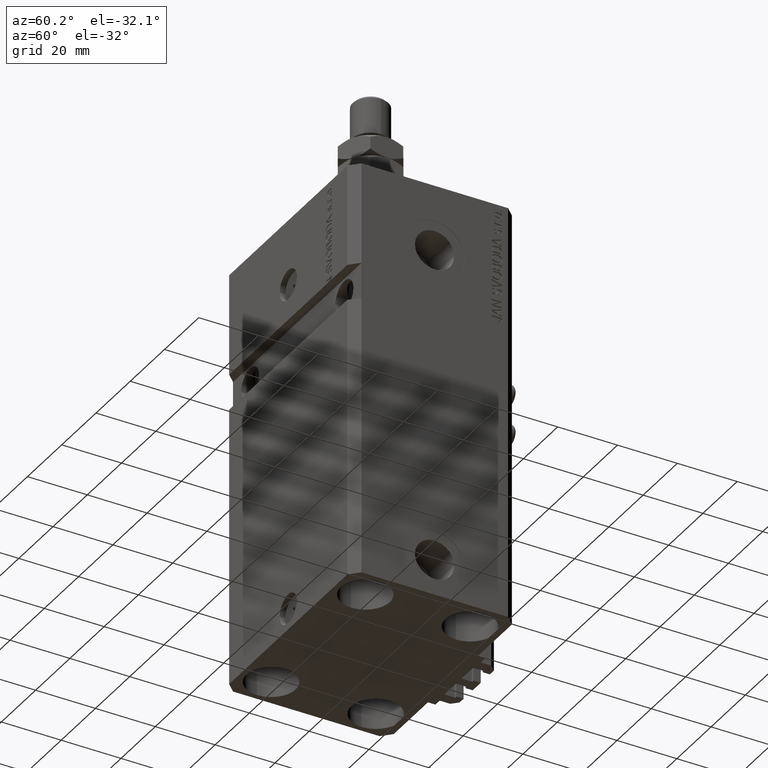
[diagram: clean part render]
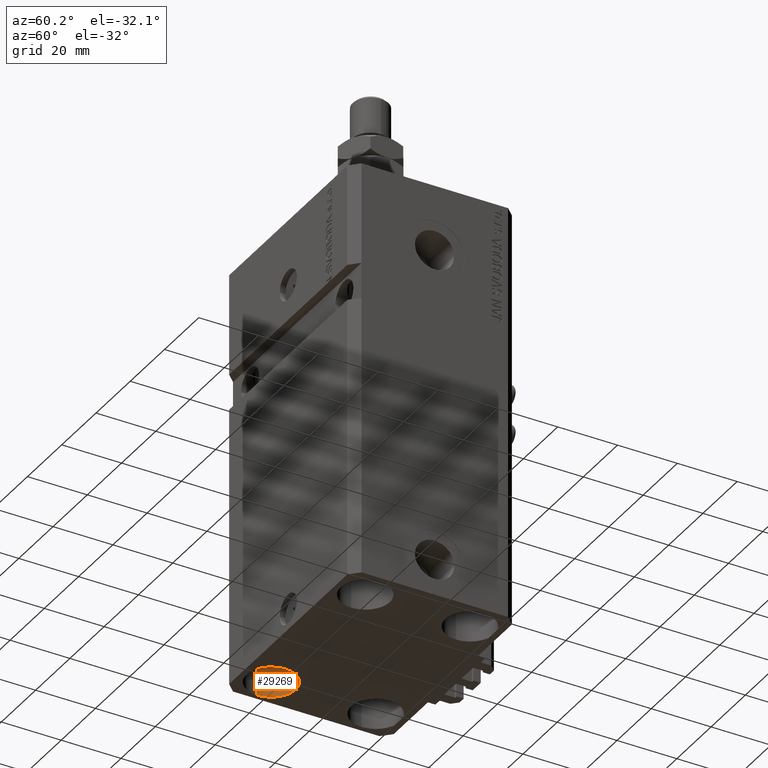
[diagram: same view with one face highlighted and labeled with its STEP entity id]
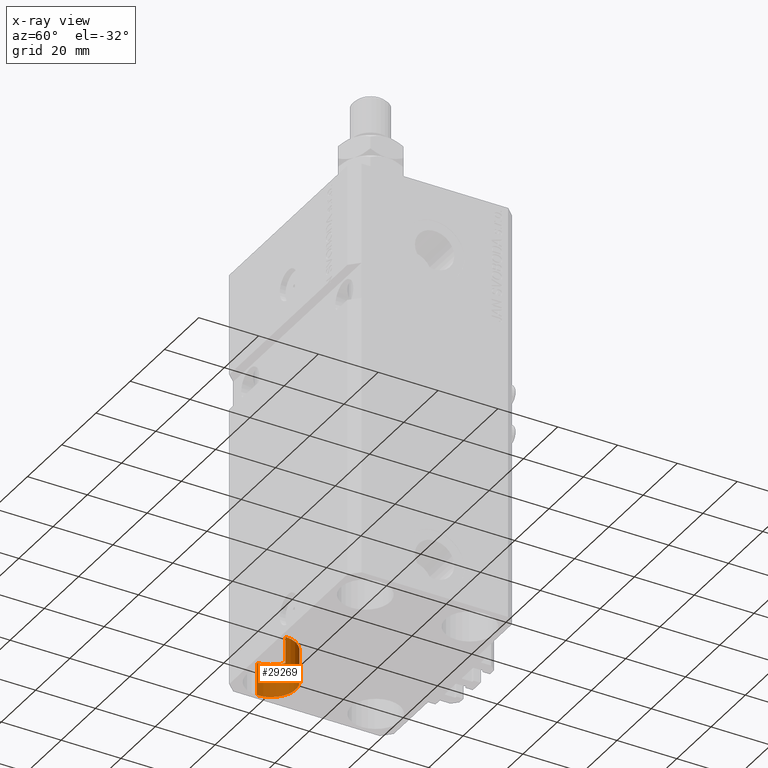
[diagram: x-ray of the same camera — body ghosted, the highlighted face saturated]
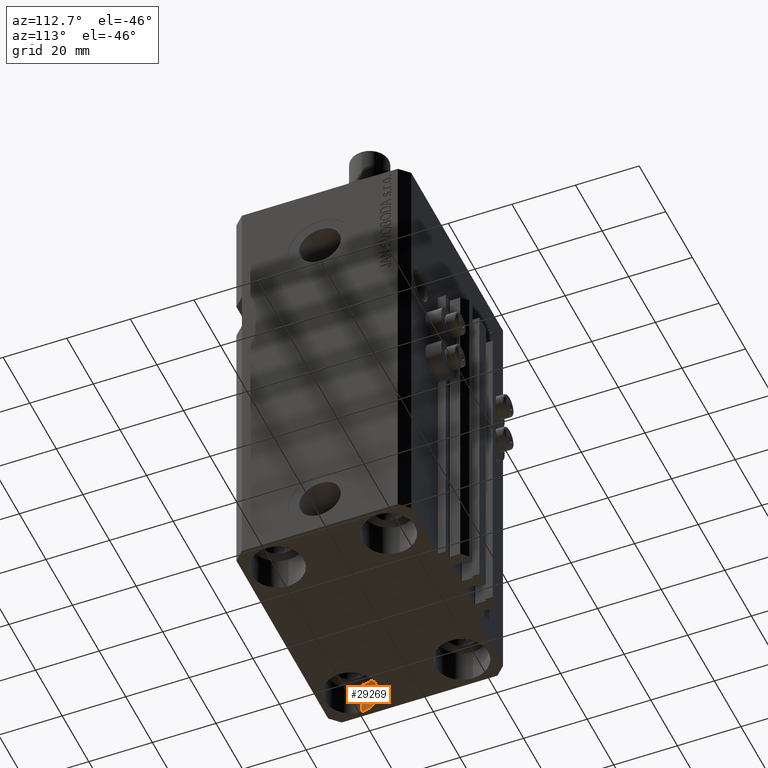
[diagram: same view with one face highlighted and labeled with its STEP entity id]
A machine part, auxiliary view. The second image highlights one B-rep face of the part: STEP entity #29269.
The next image is the same camera in x-ray: the body ghosted, the highlighted face saturated — about 0% of this face is hidden behind the body in this view.
A second angle (auxiliary view) of the same face is appended — the face is thin or edge-on in the first view.
In plain terms, the highlighted cylindrical surface (edge-blend (fillet) strip) has radius 8.25 mm, axis along (-0, -0, -1).
Its self-contained STEP definition (entity closure, byte-faithful):
#1230 = CARTESIAN_POINT ( 'NONE',  ( -27.50000000000000355, -17.50000000000000000, -140.0000000000000000 ) ) ;
#5461 = CARTESIAN_POINT ( 'NONE',  ( -27.50000000000000355, -17.50000000000000000, -129.0000000000000000 ) ) ;
#5866 = EDGE_CURVE ( 'NONE', #25260, #44214, #29014, .T. ) ;
#8891 = DIRECTION ( 'NONE',  ( -1.000000000000000000, 0.000000000000000000, 0.000000000000000000 ) ) ;
#9129 = FACE_OUTER_BOUND ( 'NONE', #45598, .T. ) ;
#9175 = VECTOR ( 'NONE', #33644, 1000.000000000000000 ) ;
#10396 = CARTESIAN_POINT ( 'NONE',  ( -19.25000000000000355, -17.50000000000000000, -129.0000000000000000 ) ) ;
#11317 = CARTESIAN_POINT ( 'NONE',  ( -35.75000000000000711, -17.50000000000000000, -129.0000000000000000 ) ) ;
#11834 = ORIENTED_EDGE ( 'NONE', *, *, #24125, .F. ) ;
#12051 = DIRECTION ( 'NONE',  ( -0.000000000000000000, -0.000000000000000000, -1.000000000000000000 ) ) ;
#12510 = CIRCLE ( 'NONE', #17176, 8.250000000000000000 ) ;
#12601 = CARTESIAN_POINT ( 'NONE',  ( -27.50000000000000355, -17.50000000000000000, -129.0000000000000000 ) ) ;
#15123 = ORIENTED_EDGE ( 'NONE', *, *, #37757, .T. ) ;
#17176 = AXIS2_PLACEMENT_3D ( 'NONE', #1230, #34549, #26461 ) ;
#20131 = DIRECTION ( 'NONE',  ( -0.000000000000000000, -0.000000000000000000, -1.000000000000000000 ) ) ;
#20616 = ORIENTED_EDGE ( 'NONE', *, *, #28687, .T. ) ;
#24093 = DIRECTION ( 'NONE',  ( -0.000000000000000000, -0.000000000000000000, 1.000000000000000000 ) ) ;
#24125 = EDGE_CURVE ( 'NONE', #44214, #47900, #12510, .T. ) ;
#25260 = VERTEX_POINT ( 'NONE', #31659 ) ;
#26461 = DIRECTION ( 'NONE',  ( 1.000000000000000000, 0.000000000000000000, 0.000000000000000000 ) ) ;
#26777 = VECTOR ( 'NONE', #12051, 1000.000000000000000 ) ;
#26982 = LINE ( 'NONE', #11317, #26777 ) ;
#27300 = CARTESIAN_POINT ( 'NONE',  ( -19.25000000000000355, -17.50000000000000000, -140.0000000000000000 ) ) ;
#28687 = EDGE_CURVE ( 'NONE', #35544, #47900, #26982, .T. ) ;
#29014 = LINE ( 'NONE', #10396, #9175 ) ;
#29269 = ADVANCED_FACE ( 'NONE', ( #9129 ), #42435, .F. ) ;
#30961 = CARTESIAN_POINT ( 'NONE',  ( -35.75000000000000711, -17.50000000000000000, -140.0000000000000000 ) ) ;
#31659 = CARTESIAN_POINT ( 'NONE',  ( -19.25000000000000355, -17.50000000000000000, -129.0000000000000000 ) ) ;
#33644 = DIRECTION ( 'NONE',  ( -0.000000000000000000, -0.000000000000000000, -1.000000000000000000 ) ) ;
#34549 = DIRECTION ( 'NONE',  ( -0.000000000000000000, -0.000000000000000000, 1.000000000000000000 ) ) ;
#34697 = CARTESIAN_POINT ( 'NONE',  ( -35.75000000000000711, -17.50000000000000000, -129.0000000000000000 ) ) ;
#35544 = VERTEX_POINT ( 'NONE', #34697 ) ;
#37757 = EDGE_CURVE ( 'NONE', #25260, #35544, #47293, .T. ) ;
#39033 = DIRECTION ( 'NONE',  ( 1.000000000000000000, 0.000000000000000000, 0.000000000000000000 ) ) ;
#40249 = AXIS2_PLACEMENT_3D ( 'NONE', #12601, #24093, #39033 ) ;
#40352 = ORIENTED_EDGE ( 'NONE', *, *, #5866, .F. ) ;
#42435 = CYLINDRICAL_SURFACE ( 'NONE', #46319, 8.250000000000000000 ) ;
#44214 = VERTEX_POINT ( 'NONE', #27300 ) ;
#45598 = EDGE_LOOP ( 'NONE', ( #40352, #15123, #20616, #11834 ) ) ;
#46319 = AXIS2_PLACEMENT_3D ( 'NONE', #5461, #20131, #8891 ) ;
#47293 = CIRCLE ( 'NONE', #40249, 8.250000000000000000 ) ;
#47900 = VERTEX_POINT ( 'NONE', #30961 ) ;